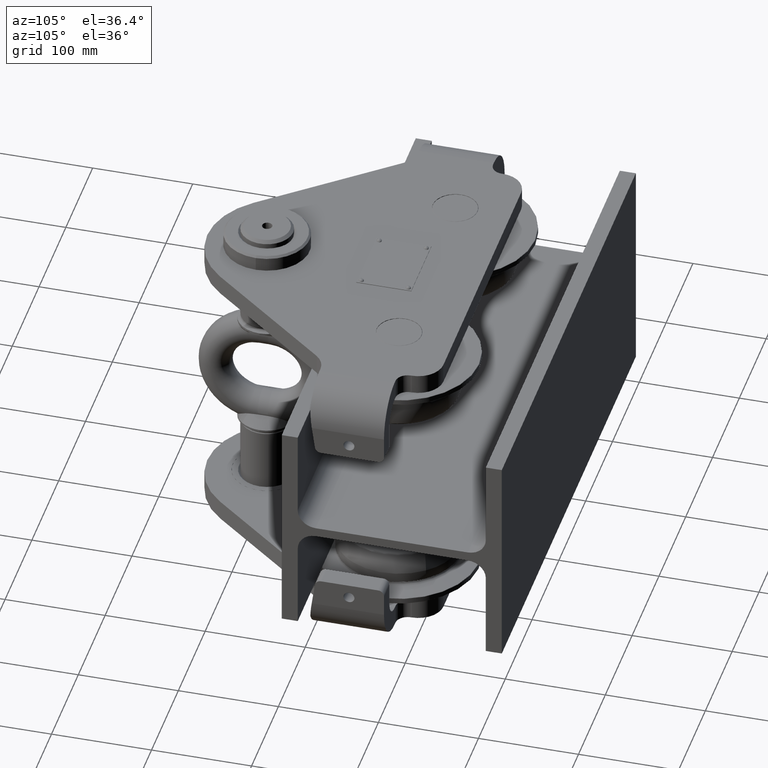
[diagram: clean part render]
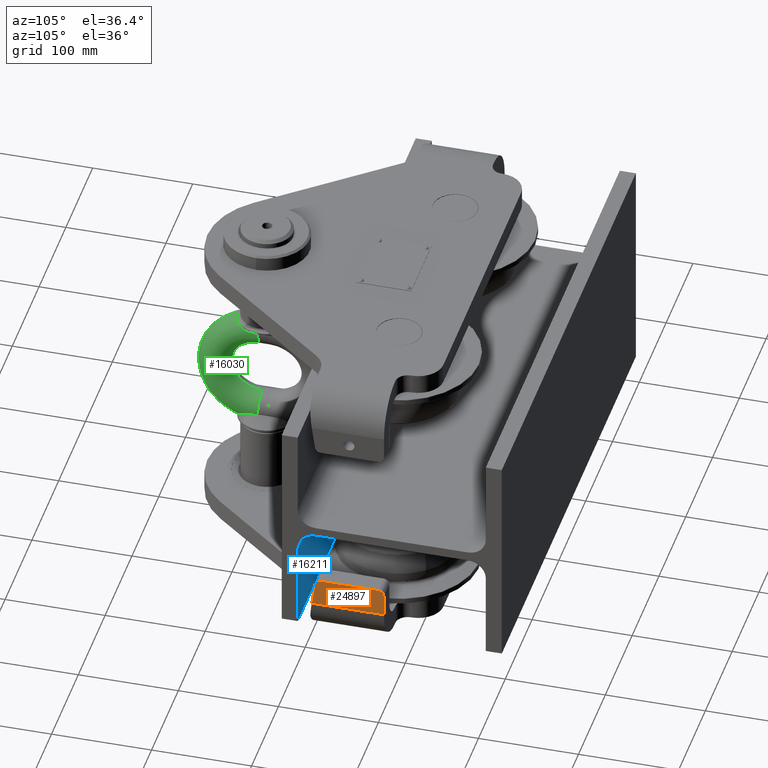
[diagram: same view with three faces highlighted in distinct colors, each labeled with its STEP entity id]
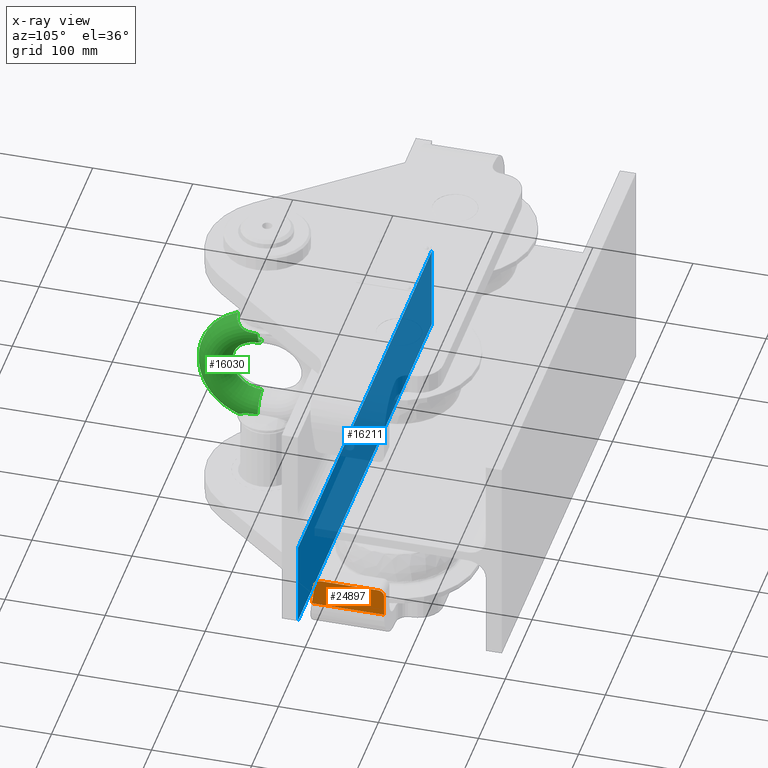
[diagram: x-ray of the same camera — body ghosted, the three highlighted faces saturated]
A machine part, auxiliary view with three faces highlighted in distinct colors.
The next image is the same camera in x-ray (body ghosted, the three faces saturated) — at least one of them is partly hidden behind the body in this view.
Their STEP definitions:

[orange] entity #24897 — the highlighted planar face has unit normal (1, 0, 0).
#18 = EDGE_CURVE ( 'NONE', #3465, #23963, #10445, .T. ) ;
#386 = VECTOR ( 'NONE', #17720, 1000.000000000000000 ) ;
#430 = FACE_OUTER_BOUND ( 'NONE', #28702, .T. ) ;
#481 = CIRCLE ( 'NONE', #6153, 5.500000000000005300 ) ;
#723 = VERTEX_POINT ( 'NONE', #4220 ) ;
#1007 = CARTESIAN_POINT ( 'NONE',  ( 224.9999999999999400, -55.00000000000006400, -90.99999999999839400 ) ) ;
#1585 = AXIS2_PLACEMENT_3D ( 'NONE', #12412, #21182, #15308 ) ;
#1640 = DIRECTION ( 'NONE',  ( 0.0000000000000000000, -0.1391731009600585800, -0.9902680687415712500 ) ) ;
#1820 = CIRCLE ( 'NONE', #25536, 5.500000000000005300 ) ;
#2690 = EDGE_CURVE ( 'NONE', #23963, #723, #20204, .T. ) ;
#3465 = VERTEX_POINT ( 'NONE', #29132 ) ;
#4220 = CARTESIAN_POINT ( 'NONE',  ( 224.9999999999999400, -86.68918330595229800, -104.9999999999983900 ) ) ;
#4932 = DIRECTION ( 'NONE',  ( -1.000000000000000000, 0.0000000000000000000, 0.0000000000000000000 ) ) ;
#6153 = AXIS2_PLACEMENT_3D ( 'NONE', #31300, #7312, #16556 ) ;
#7312 = DIRECTION ( 'NONE',  ( -1.000000000000000000, 0.0000000000000000000, 0.0000000000000000000 ) ) ;
#7401 = ORIENTED_EDGE ( 'NONE', *, *, #32665, .F. ) ;
#7536 = EDGE_CURVE ( 'NONE', #723, #23602, #20646, .T. ) ;
#7793 = CARTESIAN_POINT ( 'NONE',  ( 224.9999999999999400, -251.5000000000000600, -104.9999999999984100 ) ) ;
#7992 = FACE_BOUND ( 'NONE', #35403, .T. ) ;
#8046 = DIRECTION ( 'NONE',  ( 0.0000000000000000000, 1.224606353822377300E-016, -1.000000000000000000 ) ) ;
#8714 = ORIENTED_EDGE ( 'NONE', *, *, #20651, .T. ) ;
#10316 = VECTOR ( 'NONE', #8046, 1000.000000000000000 ) ;
#10445 = CIRCLE ( 'NONE', #11476, 6.000000000000005300 ) ;
#10587 = CARTESIAN_POINT ( 'NONE',  ( 224.9999999999999400, -14.50000000000004100, -76.99999999999838000 ) ) ;
#10902 = CARTESIAN_POINT ( 'NONE',  ( 224.9999999999999400, -89.49999999999998600, -124.9999999999983900 ) ) ;
#11476 = AXIS2_PLACEMENT_3D ( 'NONE', #14343, #17502, #32097 ) ;
#12412 = CARTESIAN_POINT ( 'NONE',  ( 224.9999999999999400, -20.50000000000003900, -82.99999999999838000 ) ) ;
#12425 = ORIENTED_EDGE ( 'NONE', *, *, #16658, .T. ) ;
#13567 = DIRECTION ( 'NONE',  ( 0.0000000000000000000, 1.000000000000000000, 1.224606353822377300E-016 ) ) ;
#13612 = ORIENTED_EDGE ( 'NONE', *, *, #24901, .F. ) ;
#14343 = CARTESIAN_POINT ( 'NONE',  ( 224.9999999999999400, -77.53831950738813800, -82.99999999999839400 ) ) ;
#15308 = DIRECTION ( 'NONE',  ( 0.0000000000000000000, -1.000000000000000000, 0.0000000000000000000 ) ) ;
#15542 = CARTESIAN_POINT ( 'NONE',  ( 224.9999999999999400, -14.50000000000004100, -104.9999999999983800 ) ) ;
#16225 = VERTEX_POINT ( 'NONE', #1007 ) ;
#16556 = DIRECTION ( 'NONE',  ( 0.0000000000000000000, 1.000000000000000000, 0.0000000000000000000 ) ) ;
#16658 = EDGE_CURVE ( 'NONE', #32302, #16225, #481, .T. ) ;
#16899 = EDGE_CURVE ( 'NONE', #16225, #32302, #1820, .T. ) ;
#17189 = VERTEX_POINT ( 'NONE', #25124 ) ;
#17502 = DIRECTION ( 'NONE',  ( 1.000000000000000000, 0.0000000000000000000, 0.0000000000000000000 ) ) ;
#17720 = DIRECTION ( 'NONE',  ( 0.0000000000000000000, 1.000000000000000000, 1.224606353822377300E-016 ) ) ;
#20204 = LINE ( 'NONE', #10902, #29083 ) ;
#20567 = CARTESIAN_POINT ( 'NONE',  ( 224.9999999999999400, -251.5000000000000600, -76.99999999999842300 ) ) ;
#20646 = LINE ( 'NONE', #31584, #32340 ) ;
#20651 = EDGE_CURVE ( 'NONE', #17189, #36095, #27249, .T. ) ;
#21182 = DIRECTION ( 'NONE',  ( 1.000000000000000000, 0.0000000000000000000, 0.0000000000000000000 ) ) ;
#22942 = CARTESIAN_POINT ( 'NONE',  ( 224.9999999999999400, -49.50000000000005700, -90.99999999999839400 ) ) ;
#23071 = DIRECTION ( 'NONE',  ( 0.0000000000000000000, 1.000000000000000000, 0.0000000000000000000 ) ) ;
#23602 = VERTEX_POINT ( 'NONE', #15542 ) ;
#23963 = VERTEX_POINT ( 'NONE', #34971 ) ;
#24874 = LINE ( 'NONE', #20567, #386 ) ;
#24897 = ADVANCED_FACE ( 'NONE', ( #7992, #430 ), #37661, .T. ) ;
#24901 = EDGE_CURVE ( 'NONE', #17189, #23602, #33746, .T. ) ;
#25124 = CARTESIAN_POINT ( 'NONE',  ( 224.9999999999999400, -14.50000000000004100, -82.99999999999838000 ) ) ;
#25127 = CARTESIAN_POINT ( 'NONE',  ( 224.9999999999999400, -20.50000000000004600, -76.99999999999839400 ) ) ;
#25536 = AXIS2_PLACEMENT_3D ( 'NONE', #22942, #4932, #23071 ) ;
#25890 = ORIENTED_EDGE ( 'NONE', *, *, #7536, .T. ) ;
#25968 = ORIENTED_EDGE ( 'NONE', *, *, #18, .T. ) ;
#27249 = CIRCLE ( 'NONE', #1585, 5.999999999999998200 ) ;
#28702 = EDGE_LOOP ( 'NONE', ( #7401, #25968, #32766, #25890, #13612, #8714 ) ) ;
#29020 = DIRECTION ( 'NONE',  ( 0.0000000000000000000, -1.000000000000000000, -1.224606353822377300E-016 ) ) ;
#29083 = VECTOR ( 'NONE', #1640, 1000.000000000000100 ) ;
#29132 = CARTESIAN_POINT ( 'NONE',  ( 224.9999999999999400, -77.53831950738815200, -76.99999999999839400 ) ) ;
#31300 = CARTESIAN_POINT ( 'NONE',  ( 224.9999999999999400, -49.50000000000005700, -90.99999999999839400 ) ) ;
#31553 = CARTESIAN_POINT ( 'NONE',  ( 224.9999999999999400, -44.00000000000005000, -90.99999999999839400 ) ) ;
#31584 = CARTESIAN_POINT ( 'NONE',  ( 224.9999999999999400, -251.5000000000000600, -104.9999999999984100 ) ) ;
#32097 = DIRECTION ( 'NONE',  ( 0.0000000000000000000, -1.000000000000000000, 0.0000000000000000000 ) ) ;
#32302 = VERTEX_POINT ( 'NONE', #31553 ) ;
#32340 = VECTOR ( 'NONE', #13567, 1000.000000000000000 ) ;
#32665 = EDGE_CURVE ( 'NONE', #3465, #36095, #24874, .T. ) ;
#32766 = ORIENTED_EDGE ( 'NONE', *, *, #2690, .T. ) ;
#33128 = ORIENTED_EDGE ( 'NONE', *, *, #16899, .T. ) ;
#33746 = LINE ( 'NONE', #10587, #10316 ) ;
#34971 = CARTESIAN_POINT ( 'NONE',  ( 224.9999999999999400, -83.47992791983756400, -82.16496139423804800 ) ) ;
#35403 = EDGE_LOOP ( 'NONE', ( #12425, #33128 ) ) ;
#36095 = VERTEX_POINT ( 'NONE', #25127 ) ;
#36207 = AXIS2_PLACEMENT_3D ( 'NONE', #7793, #37913, #29020 ) ;
#37661 = PLANE ( 'NONE',  #36207 ) ;
#37913 = DIRECTION ( 'NONE',  ( 1.000000000000000000, 0.0000000000000000000, 0.0000000000000000000 ) ) ;

[blue] entity #16211 — the highlighted planar face has unit normal (-0, 1, 0).
#453 = ORIENTED_EDGE ( 'NONE', *, *, #33917, .T. ) ;
#960 = DIRECTION ( 'NONE',  ( -1.925929944387235900E-034, -1.622250703616490400E-016, 1.000000000000000000 ) ) ;
#1904 = LINE ( 'NONE', #6221, #30548 ) ;
#2998 = LINE ( 'NONE', #16645, #18101 ) ;
#4114 = CARTESIAN_POINT ( 'NONE',  ( -249.9999999999987800, -93.99999999999988600, -110.0000000000000100 ) ) ;
#4286 = DIRECTION ( 'NONE',  ( -2.297505481454627600E-050, 1.000000000000000000, 1.622250703616490400E-016 ) ) ;
#4745 = EDGE_CURVE ( 'NONE', #20448, #28286, #34774, .T. ) ;
#5403 = DIRECTION ( 'NONE',  ( 1.000000000000000000, 0.0000000000000000000, 7.703719777548941700E-034 ) ) ;
#6221 = CARTESIAN_POINT ( 'NONE',  ( -249.9999999999987800, -93.99999999999988600, -110.0000000000000100 ) ) ;
#6712 = FACE_OUTER_BOUND ( 'NONE', #27420, .T. ) ;
#8410 = AXIS2_PLACEMENT_3D ( 'NONE', #18799, #4286, #18926 ) ;
#10227 = CARTESIAN_POINT ( 'NONE',  ( 250.0000000000013400, -93.99999999999988600, -110.0000000000000100 ) ) ;
#11420 = EDGE_CURVE ( 'NONE', #25662, #27978, #1904, .T. ) ;
#12517 = LINE ( 'NONE', #4114, #15807 ) ;
#12984 = ORIENTED_EDGE ( 'NONE', *, *, #31046, .F. ) ;
#15807 = VECTOR ( 'NONE', #960, 1000.000000000000000 ) ;
#16211 = ADVANCED_FACE ( 'NONE', ( #6712 ), #22178, .T. ) ;
#16645 = CARTESIAN_POINT ( 'NONE',  ( 250.0000000000013400, -93.99999999999988600, -110.0000000000000100 ) ) ;
#16989 = CARTESIAN_POINT ( 'NONE',  ( -249.9999999999987800, -93.99999999999991500, -22.74999999999996800 ) ) ;
#17666 = ORIENTED_EDGE ( 'NONE', *, *, #4745, .T. ) ;
#18101 = VECTOR ( 'NONE', #22660, 1000.000000000000000 ) ;
#18799 = CARTESIAN_POINT ( 'NONE',  ( -249.9999999999987800, -93.99999999999988600, -110.0000000000000100 ) ) ;
#18926 = DIRECTION ( 'NONE',  ( -1.925929944387235900E-034, -1.622250703616490400E-016, 1.000000000000000000 ) ) ;
#20448 = VERTEX_POINT ( 'NONE', #16989 ) ;
#22178 = PLANE ( 'NONE',  #8410 ) ;
#22660 = DIRECTION ( 'NONE',  ( -1.925929944387235900E-034, -1.622250703616490400E-016, 1.000000000000000000 ) ) ;
#25662 = VERTEX_POINT ( 'NONE', #29611 ) ;
#27210 = DIRECTION ( 'NONE',  ( 1.000000000000000000, 0.0000000000000000000, 7.703719777548941700E-034 ) ) ;
#27420 = EDGE_LOOP ( 'NONE', ( #12984, #32383, #453, #17666 ) ) ;
#27978 = VERTEX_POINT ( 'NONE', #10227 ) ;
#28286 = VERTEX_POINT ( 'NONE', #31160 ) ;
#29611 = CARTESIAN_POINT ( 'NONE',  ( -249.9999999999987800, -93.99999999999988600, -110.0000000000000100 ) ) ;
#30548 = VECTOR ( 'NONE', #27210, 1000.000000000000000 ) ;
#31046 = EDGE_CURVE ( 'NONE', #27978, #28286, #2998, .T. ) ;
#31160 = CARTESIAN_POINT ( 'NONE',  ( 250.0000000000013400, -93.99999999999991500, -22.74999999999996800 ) ) ;
#31513 = VECTOR ( 'NONE', #5403, 1000.000000000000000 ) ;
#32383 = ORIENTED_EDGE ( 'NONE', *, *, #11420, .F. ) ;
#33917 = EDGE_CURVE ( 'NONE', #25662, #20448, #12517, .T. ) ;
#34774 = LINE ( 'NONE', #38193, #31513 ) ;
#38193 = CARTESIAN_POINT ( 'NONE',  ( -249.9999999999987800, -93.99999999999991500, -22.74999999999996800 ) ) ;

[green] entity #16030 — the highlighted toroidal blend (fillet) surface has major radius 46.5 mm and minor (blend) radius 16.5 mm.
#483 = CARTESIAN_POINT ( 'NONE',  ( 15.61060803828186700, -210.3922853047754100, -49.95506384522685300 ) ) ;
#671 = DIRECTION ( 'NONE',  ( -1.000000000000000000, 0.0000000000000000000, 0.0000000000000000000 ) ) ;
#994 = EDGE_CURVE ( 'NONE', #37161, #17800, #24323, .T. ) ;
#1049 = DIRECTION ( 'NONE',  ( 1.955308370867585000E-030, -1.000000000000000000, 2.823226364095317100E-014 ) ) ;
#1467 = CARTESIAN_POINT ( 'NONE',  ( 15.23141514536810000, -211.8315885877949800, 50.59971117742667700 ) ) ;
#1520 = EDGE_CURVE ( 'NONE', #15585, #19711, #2362, .T. ) ;
#1595 = CARTESIAN_POINT ( 'NONE',  ( 14.41843490700063800, -213.7997126900802700, 51.71288681910635900 ) ) ;
#2013 = CARTESIAN_POINT ( 'NONE',  ( 1.162611234090036100, -220.5000000000002300, -58.24946351684268800 ) ) ;
#2362 = B_SPLINE_CURVE_WITH_KNOTS ( 'NONE', 3,
 ( #30462, #36481, #12558, #7011, #33469, #27973, #27591, #9787 ),
 .UNSPECIFIED., .F., .F.,
 ( 4, 2, 2, 4 ),
 ( 0.006967397322768796200, 0.01044571445054805400, 0.01218487301443768300, 0.01392403157832731300 ),
 .UNSPECIFIED. ) ;
#2408 = CARTESIAN_POINT ( 'NONE',  ( -4.262020387056222500E-015, -196.4999999999987200, 46.50000000000000000 ) ) ;
#2609 = B_SPLINE_CURVE_WITH_KNOTS ( 'NONE', 3,
 ( #37276, #22391, #30986, #27994, #28118, #7146 ),
 .UNSPECIFIED., .F., .F.,
 ( 4, 2, 4 ),
 ( 0.0000000000000000000, 0.005056082113876760400, 0.01011216422775352100 ),
 .UNSPECIFIED. ) ;
#2913 = CARTESIAN_POINT ( 'NONE',  ( 16.14970968157150800, -206.5730623694668100, 48.85419018527897400 ) ) ;
#2973 = VERTEX_POINT ( 'NONE', #35591 ) ;
#3495 = CARTESIAN_POINT ( 'NONE',  ( 10.47097514471091800, -218.0534991549016600, -55.19895987007698300 ) ) ;
#4348 = ORIENTED_EDGE ( 'NONE', *, *, #18282, .T. ) ;
#5182 = CARTESIAN_POINT ( 'NONE',  ( 4.030948684565479400, -220.2242590919547600, -57.83382278780549500 ) ) ;
#5391 = CARTESIAN_POINT ( 'NONE',  ( 16.14970968157150800, -206.5730623694668100, 48.85419018527897400 ) ) ;
#5754 = CARTESIAN_POINT ( 'NONE',  ( 6.789701822044432500, -219.6939700852457000, -57.00000000000000000 ) ) ;
#5803 = CARTESIAN_POINT ( 'NONE',  ( 6.789701822044492000, -219.6939700852459200, 57.00000000000000000 ) ) ;
#5891 = VERTEX_POINT ( 'NONE', #36014 ) ;
#6304 = CARTESIAN_POINT ( 'NONE',  ( -1.071569174464997900E-014, -196.5000000000006800, -46.50000000000000000 ) ) ;
#6400 = CARTESIAN_POINT ( 'NONE',  ( 11.34520208129735500, -217.4414516651687300, -54.62953950804496400 ) ) ;
#6549 = CARTESIAN_POINT ( 'NONE',  ( 9.219653869752138000, -218.7901185588441100, -55.91003089512499700 ) ) ;
#7011 = CARTESIAN_POINT ( 'NONE',  ( 4.030948684565494500, -220.2242590919547600, 57.83382278780550900 ) ) ;
#7146 = CARTESIAN_POINT ( 'NONE',  ( 16.43063562197318800, -196.5000000000006800, -48.01136132607180000 ) ) ;
#7231 = DIRECTION ( 'NONE',  ( -1.000000000000000000, 0.0000000000000000000, 0.0000000000000000000 ) ) ;
#7423 = CARTESIAN_POINT ( 'NONE',  ( 6.789701822044492000, -219.6939700852459200, 57.00000000000000000 ) ) ;
#7787 = CARTESIAN_POINT ( 'NONE',  ( 15.76393853991887200, -209.6594500412759300, 49.66678633498654000 ) ) ;
#8105 = VERTEX_POINT ( 'NONE', #32055 ) ;
#8564 = CARTESIAN_POINT ( 'NONE',  ( 13.89661665512555200, -214.7083405397442300, 52.32551736131431900 ) ) ;
#9173 = CIRCLE ( 'NONE', #15194, 63.00000000000000000 ) ;
#9440 = CARTESIAN_POINT ( 'NONE',  ( 15.52368704440470100, -210.7567778237651100, -50.11044335773176100 ) ) ;
#9572 = CARTESIAN_POINT ( 'NONE',  ( 12.85498062700978400, -216.0516255899330800, -53.38296045857278900 ) ) ;
#9787 = CARTESIAN_POINT ( 'NONE',  ( 6.789701822044492000, -219.6939700852459200, 57.00000000000000000 ) ) ;
#10360 = B_SPLINE_CURVE_WITH_KNOTS ( 'NONE', 3,
 ( #5391, #22767, #31507, #25505, #7787, #28744, #23413, #1467, #26546, #37525, #1595, #10862, #8564, #35425, #38445, #11650, #31763, #13870, #34771, #37770, #14905, #29922, #11911, #5803 ),
 .UNSPECIFIED., .F., .F.,
 ( 4, 2, 2, 2, 2, 2, 2, 2, 2, 2, 2, 4 ),
 ( 2.881939084222627100E-017, 0.002409449002535993700, 0.003614173503803979500, 0.004818898005071965700, 0.007228347007608007500, 0.008433071508876035400, 0.009637796010144061500, 0.01204724501268005800, 0.01325196951394803900, 0.01445669401521602000, 0.01686614301775193500, 0.01927559202028785200 ),
 .UNSPECIFIED. ) ;
#10431 = EDGE_CURVE ( 'NONE', #2973, #15585, #9173, .T. ) ;
#10451 = AXIS2_PLACEMENT_3D ( 'NONE', #33194, #33328, #36327 ) ;
#10862 = CARTESIAN_POINT ( 'NONE',  ( 14.08090010373159700, -214.4107620654680200, 52.11621288737724500 ) ) ;
#10904 = CARTESIAN_POINT ( 'NONE',  ( 6.789701822044432500, -219.6939700852457000, -57.00000000000000000 ) ) ;
#11025 = CARTESIAN_POINT ( 'NONE',  ( 6.255083864237557900, -219.8227173496877600, -57.20820648636499300 ) ) ;
#11332 = AXIS2_PLACEMENT_3D ( 'NONE', #35175, #26550, #26299 ) ;
#11650 = CARTESIAN_POINT ( 'NONE',  ( 12.12155273087835600, -216.7740795402925500, 54.02184071569092100 ) ) ;
#11911 = CARTESIAN_POINT ( 'NONE',  ( 7.531583063176312500, -219.5201620654328800, 56.70910042947635800 ) ) ;
#12006 = DIRECTION ( 'NONE',  ( -9.776541854337925000E-031, 1.000000000000000000, -1.414387360566590500E-014 ) ) ;
#12484 = CARTESIAN_POINT ( 'NONE',  ( 9.541050357058027800, -218.6182330936539700, -55.73941017199108900 ) ) ;
#12558 = CARTESIAN_POINT ( 'NONE',  ( 2.315721349619311200, -220.4303277780990100, 58.14676997551409000 ) ) ;
#12627 = CARTESIAN_POINT ( 'NONE',  ( 16.14970968157150100, -206.5730623694668100, -48.85419018527897400 ) ) ;
#12778 = EDGE_CURVE ( 'NONE', #8105, #30374, #38144, .T. ) ;
#13862 = ORIENTED_EDGE ( 'NONE', *, *, #35249, .T. ) ;
#13870 = CARTESIAN_POINT ( 'NONE',  ( 11.32339452381543200, -217.4412280998599300, 54.63134564717972100 ) ) ;
#14042 = CARTESIAN_POINT ( 'NONE',  ( -1.153103771710144600E-014, -220.5000000000002600, -58.24946351684270200 ) ) ;
#14156 = VERTEX_POINT ( 'NONE', #19077 ) ;
#14905 = CARTESIAN_POINT ( 'NONE',  ( 9.542474760975395000, -218.6366440345710500, 55.74942739138110400 ) ) ;
#14930 = CARTESIAN_POINT ( 'NONE',  ( 16.42524475720238200, -198.1868489510146100, 48.06996765217576200 ) ) ;
#15194 = AXIS2_PLACEMENT_3D ( 'NONE', #31731, #31994, #34739 ) ;
#15277 = ORIENTED_EDGE ( 'NONE', *, *, #33845, .T. ) ;
#15332 = ORIENTED_EDGE ( 'NONE', *, *, #1520, .F. ) ;
#15531 = CARTESIAN_POINT ( 'NONE',  ( 12.62039186310730100, -216.2968772376513600, -53.59638425016687800 ) ) ;
#15585 = VERTEX_POINT ( 'NONE', #30599 ) ;
#16030 = ADVANCED_FACE ( 'NONE', ( #16665 ), #19435, .T. ) ;
#16665 = FACE_OUTER_BOUND ( 'NONE', #20677, .T. ) ;
#16706 = ORIENTED_EDGE ( 'NONE', *, *, #23346, .F. ) ;
#16828 = AXIS2_PLACEMENT_3D ( 'NONE', #27588, #30573, #671 ) ;
#16896 = CIRCLE ( 'NONE', #11332, 30.00000000000000000 ) ;
#17155 = VERTEX_POINT ( 'NONE', #25007 ) ;
#17347 = DIRECTION ( 'NONE',  ( 1.955308370867585000E-030, -1.000000000000000000, 2.823226364095317100E-014 ) ) ;
#17467 = CARTESIAN_POINT ( 'NONE',  ( 4.599352381570116500, -220.1385134003768400, -57.70260742488640200 ) ) ;
#17695 = EDGE_CURVE ( 'NONE', #17155, #19216, #18722, .T. ) ;
#17800 = VERTEX_POINT ( 'NONE', #30261 ) ;
#17992 = ORIENTED_EDGE ( 'NONE', *, *, #12778, .T. ) ;
#18282 = EDGE_CURVE ( 'NONE', #5891, #36980, #16896, .T. ) ;
#18514 = CARTESIAN_POINT ( 'NONE',  ( 10.16649636255466900, -218.2501418079609400, -55.38407336389794000 ) ) ;
#18722 = CIRCLE ( 'NONE', #36861, 16.50000000000000400 ) ;
#18765 = B_SPLINE_CURVE_WITH_KNOTS ( 'NONE', 3,
 ( #14042, #2013, #29183, #5182, #17467, #26068, #11025, #10904 ),
 .UNSPECIFIED., .F., .F.,
 ( 4, 2, 2, 4 ),
 ( 0.006967397322768794500, 0.01044571445054804700, 0.01218487301443767200, 0.01392403157832729900 ),
 .UNSPECIFIED. ) ;
#19077 = CARTESIAN_POINT ( 'NONE',  ( 16.14970968157150800, -206.5730623694668100, 48.85419018527897400 ) ) ;
#19216 = VERTEX_POINT ( 'NONE', #22268 ) ;
#19435 = TOROIDAL_SURFACE ( 'NONE', #10451, 46.50000000000000000, 16.50000000000000000 ) ;
#19711 = VERTEX_POINT ( 'NONE', #7423 ) ;
#20250 = ORIENTED_EDGE ( 'NONE', *, *, #38213, .T. ) ;
#20587 = ORIENTED_EDGE ( 'NONE', *, *, #994, .F. ) ;
#20677 = EDGE_LOOP ( 'NONE', ( #21421, #20250, #17992, #15277, #20587, #16706, #4348, #36763, #34103, #32958, #13862, #15332 ) ) ;
#21421 = ORIENTED_EDGE ( 'NONE', *, *, #10431, .F. ) ;
#21511 = CARTESIAN_POINT ( 'NONE',  ( 15.76447316238307600, -209.6565579584140300, -49.66572867952376000 ) ) ;
#22268 = CARTESIAN_POINT ( 'NONE',  ( 16.43063562197320200, -196.4999999999986900, 48.01136132607173600 ) ) ;
#22391 = CARTESIAN_POINT ( 'NONE',  ( 16.27217791761414000, -204.9057744790300100, -48.60082342732091800 ) ) ;
#22767 = CARTESIAN_POINT ( 'NONE',  ( 16.09073594290872200, -207.3741769979857300, 48.97655935730078600 ) ) ;
#22987 = AXIS2_PLACEMENT_3D ( 'NONE', #6304, #12006, #24016 ) ;
#23314 = DIRECTION ( 'NONE',  ( -1.000000000000000000, 0.0000000000000000000, 0.0000000000000000000 ) ) ;
#23346 = EDGE_CURVE ( 'NONE', #5891, #37161, #25889, .T. ) ;
#23413 = CARTESIAN_POINT ( 'NONE',  ( 15.52239812837069100, -210.7618931237418300, 50.11268272700765200 ) ) ;
#23471 = CIRCLE ( 'NONE', #38139, 16.50000000000000400 ) ;
#23558 = CARTESIAN_POINT ( 'NONE',  ( 16.27217791761419700, -204.9057744790296500, 48.60082342732084700 ) ) ;
#24016 = DIRECTION ( 'NONE',  ( -1.000000000000000000, 0.0000000000000000000, 0.0000000000000000000 ) ) ;
#24323 = CIRCLE ( 'NONE', #22987, 16.50000000000000400 ) ;
#24393 = CARTESIAN_POINT ( 'NONE',  ( 13.29989869337607700, -215.5356464809469800, -52.95500724111306600 ) ) ;
#24524 = CARTESIAN_POINT ( 'NONE',  ( 11.88198488525436900, -217.0037736557663900, -54.22649970755978900 ) ) ;
#25007 = CARTESIAN_POINT ( 'NONE',  ( 16.49999999999999600, -196.4999999999987200, 46.50000000000000000 ) ) ;
#25505 = CARTESIAN_POINT ( 'NONE',  ( 15.83134933537296100, -209.2863289760061600, 49.53205681885110300 ) ) ;
#25889 = CIRCLE ( 'NONE', #16828, 16.50000000000000400 ) ;
#26068 = CARTESIAN_POINT ( 'NONE',  ( 5.710080908976328500, -219.9378878984773800, -57.39001116515129300 ) ) ;
#26299 = DIRECTION ( 'NONE',  ( 6.939431567305112400E-017, 0.0000000000000000000, 1.000000000000000000 ) ) ;
#26546 = CARTESIAN_POINT ( 'NONE',  ( 14.99815633690423200, -212.5137042511243500, 50.95146419734155100 ) ) ;
#26550 = DIRECTION ( 'NONE',  ( -1.000000000000000000, 0.0000000000000000000, 6.939431567305113600E-017 ) ) ;
#26821 = CARTESIAN_POINT ( 'NONE',  ( 16.43063562197320200, -196.4999999999986900, 48.01136132607173600 ) ) ;
#27383 = CARTESIAN_POINT ( 'NONE',  ( 16.00779564519318800, -208.1510085656621000, -49.16660984428267500 ) ) ;
#27512 = CARTESIAN_POINT ( 'NONE',  ( 13.51089859848820800, -215.2638977733030300, -52.73977358315009700 ) ) ;
#27588 = CARTESIAN_POINT ( 'NONE',  ( -1.071569174464997900E-014, -196.5000000000006800, -46.50000000000000000 ) ) ;
#27591 = CARTESIAN_POINT ( 'NONE',  ( 6.255083864237574800, -219.8227173496877100, 57.20820648636499300 ) ) ;
#27973 = CARTESIAN_POINT ( 'NONE',  ( 5.710080908976346200, -219.9378878984773300, 57.39001116515129300 ) ) ;
#27994 = CARTESIAN_POINT ( 'NONE',  ( 16.41022114154714000, -199.8710428577488200, -48.15709499626955600 ) ) ;
#28118 = CARTESIAN_POINT ( 'NONE',  ( 16.42524475720237500, -198.1868489510163200, -48.06996765217584800 ) ) ;
#28582 = CARTESIAN_POINT ( 'NONE',  ( -5.468188847259967800E-015, -196.4999999999992000, 30.00000000000000000 ) ) ;
#28744 = CARTESIAN_POINT ( 'NONE',  ( 15.60961632101510500, -210.3966882880850200, 49.95687587011568800 ) ) ;
#29056 = B_SPLINE_CURVE_WITH_KNOTS ( 'NONE', 3,
 ( #26821, #14930, #35975, #29433, #23558, #2913 ),
 .UNSPECIFIED., .F., .F.,
 ( 4, 2, 4 ),
 ( 0.0000000000000000000, 0.005056082113877743100, 0.01011216422775548600 ),
 .UNSPECIFIED. ) ;
#29183 = CARTESIAN_POINT ( 'NONE',  ( 2.315721349619299200, -220.4303277780989000, -58.14676997551406100 ) ) ;
#29433 = CARTESIAN_POINT ( 'NONE',  ( 16.33325860116092100, -203.2304775282657100, 48.42271561141744500 ) ) ;
#29922 = CARTESIAN_POINT ( 'NONE',  ( 8.226983262885900300, -219.2627356857554400, 56.40426757459346200 ) ) ;
#30119 = CARTESIAN_POINT ( 'NONE',  ( 8.228052558569450200, -219.2625594879945700, -56.40392126491674700 ) ) ;
#30261 = CARTESIAN_POINT ( 'NONE',  ( 16.43063562197318800, -196.5000000000006800, -48.01136132607180000 ) ) ;
#30374 = VERTEX_POINT ( 'NONE', #31684 ) ;
#30379 = CARTESIAN_POINT ( 'NONE',  ( 15.03840813540668500, -212.5426066188141500, -50.92307947960823400 ) ) ;
#30462 = CARTESIAN_POINT ( 'NONE',  ( -3.446674398953755500E-015, -220.5000000000002600, 58.24946351684270200 ) ) ;
#30522 = CARTESIAN_POINT ( 'NONE',  ( 15.83172462128891100, -209.2840947546194700, -49.53129400317472200 ) ) ;
#30573 = DIRECTION ( 'NONE',  ( -9.776541854337925000E-031, 1.000000000000000000, -1.414387360566590500E-014 ) ) ;
#30599 = CARTESIAN_POINT ( 'NONE',  ( -3.446674398953755500E-015, -220.5000000000002600, 58.24946351684270200 ) ) ;
#30986 = CARTESIAN_POINT ( 'NONE',  ( 16.33325860116090000, -203.2304775282665300, -48.42271561141754400 ) ) ;
#31507 = CARTESIAN_POINT ( 'NONE',  ( 16.00775697945099600, -208.1516179651799800, 49.16671881102172400 ) ) ;
#31684 = CARTESIAN_POINT ( 'NONE',  ( 16.14970968157150100, -206.5730623694668100, -48.85419018527897400 ) ) ;
#31731 = CARTESIAN_POINT ( 'NONE',  ( -7.488856065853100900E-015, -196.5000000000000300, 2.774178518933935500E-016 ) ) ;
#31763 = CARTESIAN_POINT ( 'NONE',  ( 11.86317710511401400, -217.0009010043097000, 54.22865603293379200 ) ) ;
#31994 = DIRECTION ( 'NONE',  ( -1.000000000000000000, 0.0000000000000000000, 6.939431567305113600E-017 ) ) ;
#32055 = CARTESIAN_POINT ( 'NONE',  ( 6.789701822044432500, -219.6939700852457000, -57.00000000000000000 ) ) ;
#32480 = EDGE_CURVE ( 'NONE', #36980, #17155, #23471, .T. ) ;
#32895 = CARTESIAN_POINT ( 'NONE',  ( 7.530738171597013400, -219.5203600067261200, -56.70943172050237300 ) ) ;
#32958 = ORIENTED_EDGE ( 'NONE', *, *, #38365, .T. ) ;
#33013 = CARTESIAN_POINT ( 'NONE',  ( 16.49999999999998900, -196.5000000000006800, -46.50000000000000000 ) ) ;
#33194 = CARTESIAN_POINT ( 'NONE',  ( -7.488856065853100900E-015, -196.5000000000000300, 2.774178518933935500E-016 ) ) ;
#33328 = DIRECTION ( 'NONE',  ( -1.000000000000000000, 0.0000000000000000000, 6.939431567305113600E-017 ) ) ;
#33405 = CARTESIAN_POINT ( 'NONE',  ( 16.09073587124078800, -207.3741779715417100, -48.97655950601014800 ) ) ;
#33469 = CARTESIAN_POINT ( 'NONE',  ( 4.599352381570131600, -220.1385134003768400, 57.70260742488640200 ) ) ;
#33845 = EDGE_CURVE ( 'NONE', #30374, #17800, #2609, .T. ) ;
#34103 = ORIENTED_EDGE ( 'NONE', *, *, #17695, .T. ) ;
#34739 = DIRECTION ( 'NONE',  ( 6.939431567305114900E-017, 0.0000000000000000000, 1.000000000000000000 ) ) ;
#34771 = CARTESIAN_POINT ( 'NONE',  ( 11.04097899882739900, -217.6549622679524700, 54.82810784448076900 ) ) ;
#35175 = CARTESIAN_POINT ( 'NONE',  ( -5.468188847259967800E-015, -196.5000000000000300, 2.774178518933934000E-016 ) ) ;
#35249 = EDGE_CURVE ( 'NONE', #14156, #19711, #10360, .T. ) ;
#35425 = CARTESIAN_POINT ( 'NONE',  ( 13.30570346881358500, -215.5580710833979800, 52.95966035064174800 ) ) ;
#35591 = CARTESIAN_POINT ( 'NONE',  ( -1.153103771710144600E-014, -220.5000000000002600, -58.24946351684270200 ) ) ;
#35975 = CARTESIAN_POINT ( 'NONE',  ( 16.41022114154715400, -199.8710428577473700, 48.15709499626947800 ) ) ;
#36014 = CARTESIAN_POINT ( 'NONE',  ( -5.468188847259969400E-015, -196.5000000000004500, -30.00000000000000000 ) ) ;
#36327 = DIRECTION ( 'NONE',  ( -6.939431567305113600E-017, 0.0000000000000000000, -1.000000000000000000 ) ) ;
#36413 = CARTESIAN_POINT ( 'NONE',  ( 14.49674230936780200, -213.8416792911705800, -51.68017325012478100 ) ) ;
#36481 = CARTESIAN_POINT ( 'NONE',  ( 1.162611234090046500, -220.5000000000003100, 58.24946351684271700 ) ) ;
#36763 = ORIENTED_EDGE ( 'NONE', *, *, #32480, .T. ) ;
#36861 = AXIS2_PLACEMENT_3D ( 'NONE', #36990, #1049, #7231 ) ;
#36980 = VERTEX_POINT ( 'NONE', #28582 ) ;
#36990 = CARTESIAN_POINT ( 'NONE',  ( -4.262020387056222500E-015, -196.4999999999987200, 46.50000000000000000 ) ) ;
#37161 = VERTEX_POINT ( 'NONE', #33013 ) ;
#37276 = CARTESIAN_POINT ( 'NONE',  ( 16.14970968157150100, -206.5730623694668100, -48.85419018527897400 ) ) ;
#37525 = CARTESIAN_POINT ( 'NONE',  ( 14.57284169700257900, -213.4847800982710700, 51.51764444182786900 ) ) ;
#37770 = CARTESIAN_POINT ( 'NONE',  ( 10.16253130831769400, -218.2683548030104800, 55.39900076942998900 ) ) ;
#38139 = AXIS2_PLACEMENT_3D ( 'NONE', #2408, #17347, #23314 ) ;
#38144 = B_SPLINE_CURVE_WITH_KNOTS ( 'NONE', 3,
 ( #5754, #32895, #30119, #6549, #12484, #18514, #3495, #6400, #24524, #15531, #9572, #24393, #27512, #36413, #30379, #9440, #483, #21511, #30522, #27383, #33405, #12627 ),
 .UNSPECIFIED., .F., .F.,
 ( 4, 2, 2, 2, 2, 2, 2, 2, 2, 2, 4 ),
 ( 2.602085213965210600E-018, 0.002407351298757835600, 0.003611026948136737800, 0.004814702597515640000, 0.007222053896273447800, 0.008425729545652325300, 0.009629405195031203600, 0.01444410779254674500, 0.01564778344192561300, 0.01685145909130447400, 0.01925881039006213000 ),
 .UNSPECIFIED. ) ;
#38213 = EDGE_CURVE ( 'NONE', #2973, #8105, #18765, .T. ) ;
#38365 = EDGE_CURVE ( 'NONE', #19216, #14156, #29056, .T. ) ;
#38445 = CARTESIAN_POINT ( 'NONE',  ( 12.86108947759749900, -216.0671371026021700, 53.39142813885421600 ) ) ;